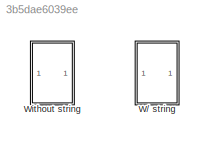
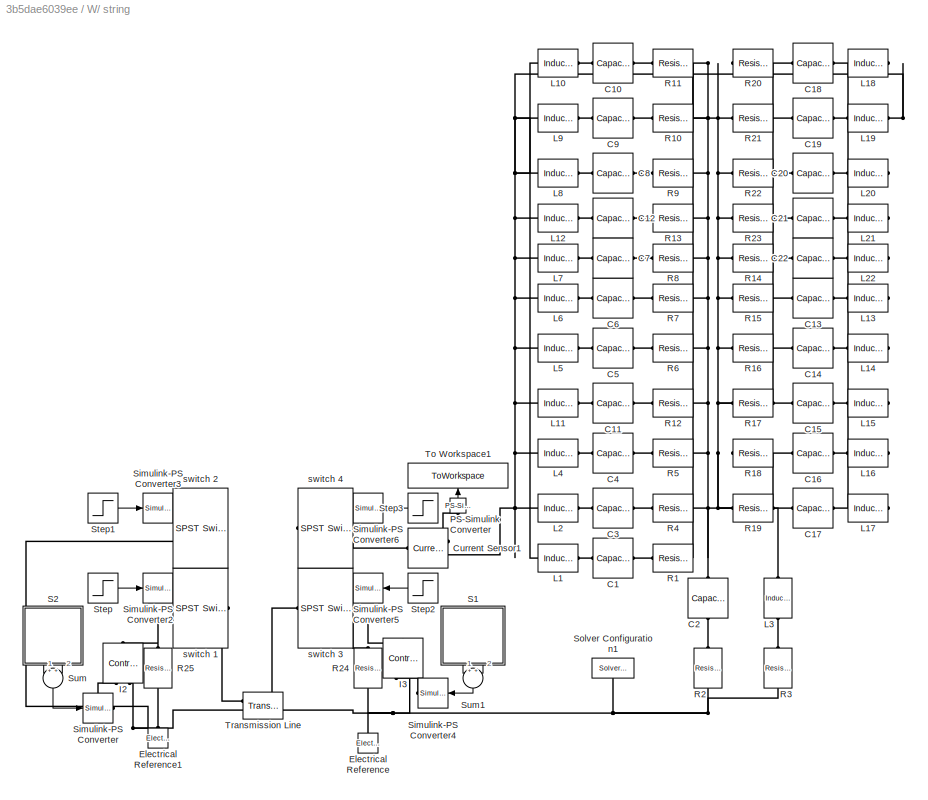
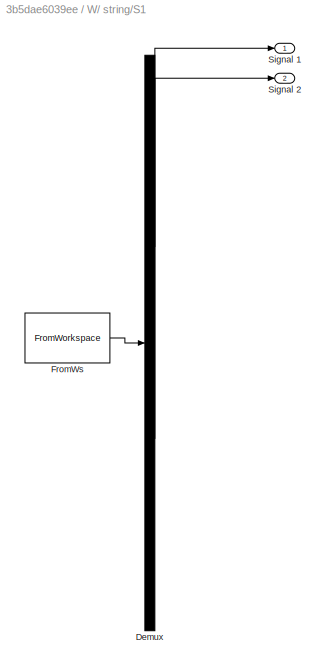
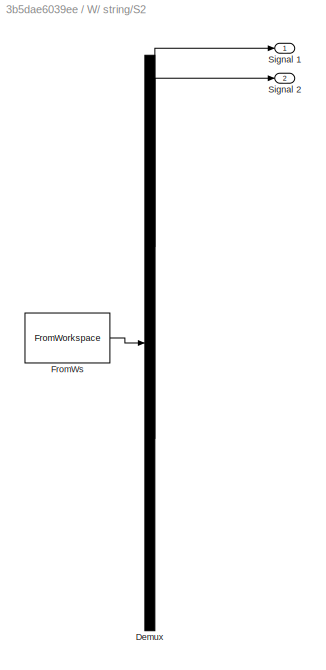
MODEL slx_3b5dae6039ee
KIND model
CONFIG AbsTol = 1e-3
CONFIG EnableMultiTasking = on
CONFIG FixedStep = 1/44100
CONFIG MaxStep = 1e-3
CONFIG MinStep = auto
CONFIG RelTol = 1e-3
CONFIG SampleTimeConstraint = Unconstrained
CONFIG SolverName = FixedStepAuto
CONFIG StartTime = 0.0
CONFIG StopTime = 3
BLOCK [SubSystem] W// string
  Ports = []
  RequestExecContextInheritance = off
BLOCK [Reference] W// string/C1  REF=fl_lib/Electrical/Electrical Elements/Capacitor
  Ports = [0, 0, 0, 0, 0, 1, 1]
  SourceBlock = fl_lib/Electrical/Electrical Elements/Capacitor
  SourceProductBaseCode = SS
  SourceType = Capacitor
BLOCK [Reference] W// string/C10  REF=fl_lib/Electrical/Electrical Elements/Capacitor
  Ports = [0, 0, 0, 0, 0, 1, 1]
  SourceBlock = fl_lib/Electrical/Electrical Elements/Capacitor
  SourceProductBaseCode = SS
  SourceType = Capacitor
BLOCK [Reference] W// string/C11  REF=fl_lib/Electrical/Electrical Elements/Capacitor
  Ports = [0, 0, 0, 0, 0, 1, 1]
  SourceBlock = fl_lib/Electrical/Electrical Elements/Capacitor
  SourceProductBaseCode = SS
  SourceType = Capacitor
BLOCK [Reference] W// string/C12  REF=fl_lib/Electrical/Electrical Elements/Capacitor
  Ports = [0, 0, 0, 0, 0, 1, 1]
  SourceBlock = fl_lib/Electrical/Electrical Elements/Capacitor
  SourceProductBaseCode = SS
  SourceType = Capacitor
BLOCK [Reference] W// string/C13  REF=fl_lib/Electrical/Electrical Elements/Capacitor
  NameLocation = top
  Ports = [0, 0, 0, 0, 0, 1, 1]
  SourceBlock = fl_lib/Electrical/Electrical Elements/Capacitor
  SourceProductBaseCode = SS
  SourceType = Capacitor
BLOCK [Reference] W// string/C14  REF=fl_lib/Electrical/Electrical Elements/Capacitor
  NameLocation = top
  Ports = [0, 0, 0, 0, 0, 1, 1]
  SourceBlock = fl_lib/Electrical/Electrical Elements/Capacitor
  SourceProductBaseCode = SS
  SourceType = Capacitor
BLOCK [Reference] W// string/C15  REF=fl_lib/Electrical/Electrical Elements/Capacitor
  NameLocation = top
  Ports = [0, 0, 0, 0, 0, 1, 1]
  SourceBlock = fl_lib/Electrical/Electrical Elements/Capacitor
  SourceProductBaseCode = SS
  SourceType = Capacitor
BLOCK [Reference] W// string/C16  REF=fl_lib/Electrical/Electrical Elements/Capacitor
  NameLocation = top
  Ports = [0, 0, 0, 0, 0, 1, 1]
  SourceBlock = fl_lib/Electrical/Electrical Elements/Capacitor
  SourceProductBaseCode = SS
  SourceType = Capacitor
BLOCK [Reference] W// string/C17  REF=fl_lib/Electrical/Electrical Elements/Capacitor
  NameLocation = top
  Ports = [0, 0, 0, 0, 0, 1, 1]
  SourceBlock = fl_lib/Electrical/Electrical Elements/Capacitor
  SourceProductBaseCode = SS
  SourceType = Capacitor
BLOCK [Reference] W// string/C18  REF=fl_lib/Electrical/Electrical Elements/Capacitor
  NameLocation = top
  Ports = [0, 0, 0, 0, 0, 1, 1]
  SourceBlock = fl_lib/Electrical/Electrical Elements/Capacitor
  SourceProductBaseCode = SS
  SourceType = Capacitor
BLOCK [Reference] W// string/C19  REF=fl_lib/Electrical/Electrical Elements/Capacitor
  NameLocation = top
  Ports = [0, 0, 0, 0, 0, 1, 1]
  SourceBlock = fl_lib/Electrical/Electrical Elements/Capacitor
  SourceProductBaseCode = SS
  SourceType = Capacitor
BLOCK [Reference] W// string/C2  REF=fl_lib/Electrical/Electrical Elements/Capacitor
  NameLocation = left
  Ports = [0, 0, 0, 0, 0, 1, 1]
  SourceBlock = fl_lib/Electrical/Electrical Elements/Capacitor
  SourceProductBaseCode = SS
  SourceType = Capacitor
BLOCK [Reference] W// string/C20  REF=fl_lib/Electrical/Electrical Elements/Capacitor
  NameLocation = top
  Ports = [0, 0, 0, 0, 0, 1, 1]
  SourceBlock = fl_lib/Electrical/Electrical Elements/Capacitor
  SourceProductBaseCode = SS
  SourceType = Capacitor
BLOCK [Reference] W// string/C21  REF=fl_lib/Electrical/Electrical Elements/Capacitor
  NameLocation = top
  Ports = [0, 0, 0, 0, 0, 1, 1]
  SourceBlock = fl_lib/Electrical/Electrical Elements/Capacitor
  SourceProductBaseCode = SS
  SourceType = Capacitor
BLOCK [Reference] W// string/C22  REF=fl_lib/Electrical/Electrical Elements/Capacitor
  NameLocation = top
  Ports = [0, 0, 0, 0, 0, 1, 1]
  SourceBlock = fl_lib/Electrical/Electrical Elements/Capacitor
  SourceProductBaseCode = SS
  SourceType = Capacitor
BLOCK [Reference] W// string/C3  REF=fl_lib/Electrical/Electrical Elements/Capacitor
  Ports = [0, 0, 0, 0, 0, 1, 1]
  SourceBlock = fl_lib/Electrical/Electrical Elements/Capacitor
  SourceProductBaseCode = SS
  SourceType = Capacitor
BLOCK [Reference] W// string/C4  REF=fl_lib/Electrical/Electrical Elements/Capacitor
  Ports = [0, 0, 0, 0, 0, 1, 1]
  SourceBlock = fl_lib/Electrical/Electrical Elements/Capacitor
  SourceProductBaseCode = SS
  SourceType = Capacitor
BLOCK [Reference] W// string/C5  REF=fl_lib/Electrical/Electrical Elements/Capacitor
  Ports = [0, 0, 0, 0, 0, 1, 1]
  SourceBlock = fl_lib/Electrical/Electrical Elements/Capacitor
  SourceProductBaseCode = SS
  SourceType = Capacitor
BLOCK [Reference] W// string/C6  REF=fl_lib/Electrical/Electrical Elements/Capacitor
  Ports = [0, 0, 0, 0, 0, 1, 1]
  SourceBlock = fl_lib/Electrical/Electrical Elements/Capacitor
  SourceProductBaseCode = SS
  SourceType = Capacitor
BLOCK [Reference] W// string/C7  REF=fl_lib/Electrical/Electrical Elements/Capacitor
  Ports = [0, 0, 0, 0, 0, 1, 1]
  SourceBlock = fl_lib/Electrical/Electrical Elements/Capacitor
  SourceProductBaseCode = SS
  SourceType = Capacitor
BLOCK [Reference] W// string/C8  REF=fl_lib/Electrical/Electrical Elements/Capacitor
  Ports = [0, 0, 0, 0, 0, 1, 1]
  SourceBlock = fl_lib/Electrical/Electrical Elements/Capacitor
  SourceProductBaseCode = SS
  SourceType = Capacitor
BLOCK [Reference] W// string/C9  REF=fl_lib/Electrical/Electrical Elements/Capacitor
  Ports = [0, 0, 0, 0, 0, 1, 1]
  SourceBlock = fl_lib/Electrical/Electrical Elements/Capacitor
  SourceProductBaseCode = SS
  SourceType = Capacitor
BLOCK [Reference] W// string/Current Sensor1  REF=fl_lib/Electrical/Electrical Sensors/Current Sensor
  Ports = [0, 0, 0, 0, 0, 1, 2]
  SourceBlock = fl_lib/Electrical/Electrical Sensors/Current Sensor
  SourceProductBaseCode = SS
  SourceType = Current Sensor
BLOCK [Reference] W// string/Electrical Reference  REF=fl_lib/Electrical/Electrical Elements/Electrical Reference
  NameLocation = right
  Ports = [0, 0, 0, 0, 0, 1]
  SourceBlock = fl_lib/Electrical/Electrical Elements/Electrical Reference
  SourceProductBaseCode = SS
  SourceType = Electrical Reference
BLOCK [Reference] W// string/Electrical Reference1  REF=fl_lib/Electrical/Electrical Elements/Electrical Reference
  NameLocation = right
  Ports = [0, 0, 0, 0, 0, 1]
  SourceBlock = fl_lib/Electrical/Electrical Elements/Electrical Reference
  SourceProductBaseCode = SS
  SourceType = Electrical Reference
BLOCK [Reference] W// string/I2  REF=fl_lib/Electrical/Electrical Sources/Controlled Current
Source
  NameLocation = right
  Ports = [0, 0, 0, 0, 0, 1, 2]
  SourceBlock = fl_lib/Electrical/Electrical Sources/Controlled Current\nSource
  SourceProductBaseCode = SS
  SourceType = Controlled Current\nSource
BLOCK [Reference] W// string/I3  REF=fl_lib/Electrical/Electrical Sources/Controlled Current
Source
  NameLocation = right
  Ports = [0, 0, 0, 0, 0, 1, 2]
  SourceBlock = fl_lib/Electrical/Electrical Sources/Controlled Current\nSource
  SourceProductBaseCode = SS
  SourceType = Controlled Current\nSource
BLOCK [Reference] W// string/L1  REF=fl_lib/Electrical/Electrical Elements/Inductor
  Ports = [0, 0, 0, 0, 0, 1, 1]
  SourceBlock = fl_lib/Electrical/Electrical Elements/Inductor
  SourceProductBaseCode = SS
  SourceType = Inductor
BLOCK [Reference] W// string/L10  REF=fl_lib/Electrical/Electrical Elements/Inductor
  Ports = [0, 0, 0, 0, 0, 1, 1]
  SourceBlock = fl_lib/Electrical/Electrical Elements/Inductor
  SourceProductBaseCode = SS
  SourceType = Inductor
BLOCK [Reference] W// string/L11  REF=fl_lib/Electrical/Electrical Elements/Inductor
  Ports = [0, 0, 0, 0, 0, 1, 1]
  SourceBlock = fl_lib/Electrical/Electrical Elements/Inductor
  SourceProductBaseCode = SS
  SourceType = Inductor
BLOCK [Reference] W// string/L12  REF=fl_lib/Electrical/Electrical Elements/Inductor
  Ports = [0, 0, 0, 0, 0, 1, 1]
  SourceBlock = fl_lib/Electrical/Electrical Elements/Inductor
  SourceProductBaseCode = SS
  SourceType = Inductor
BLOCK [Reference] W// string/L13  REF=fl_lib/Electrical/Electrical Elements/Inductor
  NameLocation = top
  Ports = [0, 0, 0, 0, 0, 1, 1]
  SourceBlock = fl_lib/Electrical/Electrical Elements/Inductor
  SourceProductBaseCode = SS
  SourceType = Inductor
BLOCK [Reference] W// string/L14  REF=fl_lib/Electrical/Electrical Elements/Inductor
  NameLocation = top
  Ports = [0, 0, 0, 0, 0, 1, 1]
  SourceBlock = fl_lib/Electrical/Electrical Elements/Inductor
  SourceProductBaseCode = SS
  SourceType = Inductor
BLOCK [Reference] W// string/L15  REF=fl_lib/Electrical/Electrical Elements/Inductor
  NameLocation = top
  Ports = [0, 0, 0, 0, 0, 1, 1]
  SourceBlock = fl_lib/Electrical/Electrical Elements/Inductor
  SourceProductBaseCode = SS
  SourceType = Inductor
BLOCK [Reference] W// string/L16  REF=fl_lib/Electrical/Electrical Elements/Inductor
  NameLocation = top
  Ports = [0, 0, 0, 0, 0, 1, 1]
  SourceBlock = fl_lib/Electrical/Electrical Elements/Inductor
  SourceProductBaseCode = SS
  SourceType = Inductor
BLOCK [Reference] W// string/L17  REF=fl_lib/Electrical/Electrical Elements/Inductor
  NameLocation = top
  Ports = [0, 0, 0, 0, 0, 1, 1]
  SourceBlock = fl_lib/Electrical/Electrical Elements/Inductor
  SourceProductBaseCode = SS
  SourceType = Inductor
BLOCK [Reference] W// string/L18  REF=fl_lib/Electrical/Electrical Elements/Inductor
  NameLocation = top
  Ports = [0, 0, 0, 0, 0, 1, 1]
  SourceBlock = fl_lib/Electrical/Electrical Elements/Inductor
  SourceProductBaseCode = SS
  SourceType = Inductor
BLOCK [Reference] W// string/L19  REF=fl_lib/Electrical/Electrical Elements/Inductor
  NameLocation = top
  Ports = [0, 0, 0, 0, 0, 1, 1]
  SourceBlock = fl_lib/Electrical/Electrical Elements/Inductor
  SourceProductBaseCode = SS
  SourceType = Inductor
BLOCK [Reference] W// string/L2  REF=fl_lib/Electrical/Electrical Elements/Inductor
  Ports = [0, 0, 0, 0, 0, 1, 1]
  SourceBlock = fl_lib/Electrical/Electrical Elements/Inductor
  SourceProductBaseCode = SS
  SourceType = Inductor
BLOCK [Reference] W// string/L20  REF=fl_lib/Electrical/Electrical Elements/Inductor
  NameLocation = top
  Ports = [0, 0, 0, 0, 0, 1, 1]
  SourceBlock = fl_lib/Electrical/Electrical Elements/Inductor
  SourceProductBaseCode = SS
  SourceType = Inductor
BLOCK [Reference] W// string/L21  REF=fl_lib/Electrical/Electrical Elements/Inductor
  NameLocation = top
  Ports = [0, 0, 0, 0, 0, 1, 1]
  SourceBlock = fl_lib/Electrical/Electrical Elements/Inductor
  SourceProductBaseCode = SS
  SourceType = Inductor
BLOCK [Reference] W// string/L22  REF=fl_lib/Electrical/Electrical Elements/Inductor
  NameLocation = top
  Ports = [0, 0, 0, 0, 0, 1, 1]
  SourceBlock = fl_lib/Electrical/Electrical Elements/Inductor
  SourceProductBaseCode = SS
  SourceType = Inductor
BLOCK [Reference] W// string/L3  REF=fl_lib/Electrical/Electrical Elements/Inductor
  NameLocation = left
  Ports = [0, 0, 0, 0, 0, 1, 1]
  SourceBlock = fl_lib/Electrical/Electrical Elements/Inductor
  SourceProductBaseCode = SS
  SourceType = Inductor
BLOCK [Reference] W// string/L4  REF=fl_lib/Electrical/Electrical Elements/Inductor
  Ports = [0, 0, 0, 0, 0, 1, 1]
  SourceBlock = fl_lib/Electrical/Electrical Elements/Inductor
  SourceProductBaseCode = SS
  SourceType = Inductor
BLOCK [Reference] W// string/L5  REF=fl_lib/Electrical/Electrical Elements/Inductor
  Ports = [0, 0, 0, 0, 0, 1, 1]
  SourceBlock = fl_lib/Electrical/Electrical Elements/Inductor
  SourceProductBaseCode = SS
  SourceType = Inductor
BLOCK [Reference] W// string/L6  REF=fl_lib/Electrical/Electrical Elements/Inductor
  Ports = [0, 0, 0, 0, 0, 1, 1]
  SourceBlock = fl_lib/Electrical/Electrical Elements/Inductor
  SourceProductBaseCode = SS
  SourceType = Inductor
BLOCK [Reference] W// string/L7  REF=fl_lib/Electrical/Electrical Elements/Inductor
  Ports = [0, 0, 0, 0, 0, 1, 1]
  SourceBlock = fl_lib/Electrical/Electrical Elements/Inductor
  SourceProductBaseCode = SS
  SourceType = Inductor
BLOCK [Reference] W// string/L8  REF=fl_lib/Electrical/Electrical Elements/Inductor
  Ports = [0, 0, 0, 0, 0, 1, 1]
  SourceBlock = fl_lib/Electrical/Electrical Elements/Inductor
  SourceProductBaseCode = SS
  SourceType = Inductor
BLOCK [Reference] W// string/L9  REF=fl_lib/Electrical/Electrical Elements/Inductor
  Ports = [0, 0, 0, 0, 0, 1, 1]
  SourceBlock = fl_lib/Electrical/Electrical Elements/Inductor
  SourceProductBaseCode = SS
  SourceType = Inductor
BLOCK [Reference] W// string/PS-Simulink Converter  REF=nesl_utility/PS-Simulink
Converter
  NameLocation = right
  Ports = [0, 1, 0, 0, 0, 1]
  SourceBlock = nesl_utility/PS-Simulink\nConverter
  SourceProductBaseCode = PW,SS
  SourceType = PS-Simulink\nConverter
BLOCK [Reference] W// string/R1  REF=fl_lib/Electrical/Electrical Elements/Resistor
  Ports = [0, 0, 0, 0, 0, 1, 1]
  SourceBlock = fl_lib/Electrical/Electrical Elements/Resistor
  SourceProductBaseCode = SS
  SourceType = Resistor
BLOCK [Reference] W// string/R10  REF=fl_lib/Electrical/Electrical Elements/Resistor
  Ports = [0, 0, 0, 0, 0, 1, 1]
  SourceBlock = fl_lib/Electrical/Electrical Elements/Resistor
  SourceProductBaseCode = SS
  SourceType = Resistor
BLOCK [Reference] W// string/R11  REF=fl_lib/Electrical/Electrical Elements/Resistor
  Ports = [0, 0, 0, 0, 0, 1, 1]
  SourceBlock = fl_lib/Electrical/Electrical Elements/Resistor
  SourceProductBaseCode = SS
  SourceType = Resistor
BLOCK [Reference] W// string/R12  REF=fl_lib/Electrical/Electrical Elements/Resistor
  Ports = [0, 0, 0, 0, 0, 1, 1]
  SourceBlock = fl_lib/Electrical/Electrical Elements/Resistor
  SourceProductBaseCode = SS
  SourceType = Resistor
BLOCK [Reference] W// string/R13  REF=fl_lib/Electrical/Electrical Elements/Resistor
  Ports = [0, 0, 0, 0, 0, 1, 1]
  SourceBlock = fl_lib/Electrical/Electrical Elements/Resistor
  SourceProductBaseCode = SS
  SourceType = Resistor
BLOCK [Reference] W// string/R14  REF=fl_lib/Electrical/Electrical Elements/Resistor
  NameLocation = top
  Ports = [0, 0, 0, 0, 0, 1, 1]
  SourceBlock = fl_lib/Electrical/Electrical Elements/Resistor
  SourceProductBaseCode = SS
  SourceType = Resistor
BLOCK [Reference] W// string/R15  REF=fl_lib/Electrical/Electrical Elements/Resistor
  NameLocation = top
  Ports = [0, 0, 0, 0, 0, 1, 1]
  SourceBlock = fl_lib/Electrical/Electrical Elements/Resistor
  SourceProductBaseCode = SS
  SourceType = Resistor
BLOCK [Reference] W// string/R16  REF=fl_lib/Electrical/Electrical Elements/Resistor
  NameLocation = top
  Ports = [0, 0, 0, 0, 0, 1, 1]
  SourceBlock = fl_lib/Electrical/Electrical Elements/Resistor
  SourceProductBaseCode = SS
  SourceType = Resistor
BLOCK [Reference] W// string/R17  REF=fl_lib/Electrical/Electrical Elements/Resistor
  NameLocation = top
  Ports = [0, 0, 0, 0, 0, 1, 1]
  SourceBlock = fl_lib/Electrical/Electrical Elements/Resistor
  SourceProductBaseCode = SS
  SourceType = Resistor
BLOCK [Reference] W// string/R18  REF=fl_lib/Electrical/Electrical Elements/Resistor
  NameLocation = top
  Ports = [0, 0, 0, 0, 0, 1, 1]
  SourceBlock = fl_lib/Electrical/Electrical Elements/Resistor
  SourceProductBaseCode = SS
  SourceType = Resistor
BLOCK [Reference] W// string/R19  REF=fl_lib/Electrical/Electrical Elements/Resistor
  NameLocation = top
  Ports = [0, 0, 0, 0, 0, 1, 1]
  SourceBlock = fl_lib/Electrical/Electrical Elements/Resistor
  SourceProductBaseCode = SS
  SourceType = Resistor
BLOCK [Reference] W// string/R2  REF=fl_lib/Electrical/Electrical Elements/Resistor
  NameLocation = left
  Ports = [0, 0, 0, 0, 0, 1, 1]
  SourceBlock = fl_lib/Electrical/Electrical Elements/Resistor
  SourceProductBaseCode = SS
  SourceType = Resistor
BLOCK [Reference] W// string/R20  REF=fl_lib/Electrical/Electrical Elements/Resistor
  NameLocation = top
  Ports = [0, 0, 0, 0, 0, 1, 1]
  SourceBlock = fl_lib/Electrical/Electrical Elements/Resistor
  SourceProductBaseCode = SS
  SourceType = Resistor
BLOCK [Reference] W// string/R21  REF=fl_lib/Electrical/Electrical Elements/Resistor
  NameLocation = top
  Ports = [0, 0, 0, 0, 0, 1, 1]
  SourceBlock = fl_lib/Electrical/Electrical Elements/Resistor
  SourceProductBaseCode = SS
  SourceType = Resistor
BLOCK [Reference] W// string/R22  REF=fl_lib/Electrical/Electrical Elements/Resistor
  NameLocation = top
  Ports = [0, 0, 0, 0, 0, 1, 1]
  SourceBlock = fl_lib/Electrical/Electrical Elements/Resistor
  SourceProductBaseCode = SS
  SourceType = Resistor
BLOCK [Reference] W// string/R23  REF=fl_lib/Electrical/Electrical Elements/Resistor
  NameLocation = top
  Ports = [0, 0, 0, 0, 0, 1, 1]
  SourceBlock = fl_lib/Electrical/Electrical Elements/Resistor
  SourceProductBaseCode = SS
  SourceType = Resistor
BLOCK [Reference] W// string/R24  REF=fl_lib/Electrical/Electrical Elements/Resistor
  NameLocation = left
  Ports = [0, 0, 0, 0, 0, 1, 1]
  SourceBlock = fl_lib/Electrical/Electrical Elements/Resistor
  SourceProductBaseCode = SS
  SourceType = Resistor
BLOCK [Reference] W// string/R25  REF=fl_lib/Electrical/Electrical Elements/Resistor
  NameLocation = left
  Ports = [0, 0, 0, 0, 0, 1, 1]
  SourceBlock = fl_lib/Electrical/Electrical Elements/Resistor
  SourceProductBaseCode = SS
  SourceType = Resistor
BLOCK [Reference] W// string/R3  REF=fl_lib/Electrical/Electrical Elements/Resistor
  NameLocation = left
  Ports = [0, 0, 0, 0, 0, 1, 1]
  SourceBlock = fl_lib/Electrical/Electrical Elements/Resistor
  SourceProductBaseCode = SS
  SourceType = Resistor
BLOCK [Reference] W// string/R4  REF=fl_lib/Electrical/Electrical Elements/Resistor
  Ports = [0, 0, 0, 0, 0, 1, 1]
  SourceBlock = fl_lib/Electrical/Electrical Elements/Resistor
  SourceProductBaseCode = SS
  SourceType = Resistor
BLOCK [Reference] W// string/R5  REF=fl_lib/Electrical/Electrical Elements/Resistor
  Ports = [0, 0, 0, 0, 0, 1, 1]
  SourceBlock = fl_lib/Electrical/Electrical Elements/Resistor
  SourceProductBaseCode = SS
  SourceType = Resistor
BLOCK [Reference] W// string/R6  REF=fl_lib/Electrical/Electrical Elements/Resistor
  Ports = [0, 0, 0, 0, 0, 1, 1]
  SourceBlock = fl_lib/Electrical/Electrical Elements/Resistor
  SourceProductBaseCode = SS
  SourceType = Resistor
BLOCK [Reference] W// string/R7  REF=fl_lib/Electrical/Electrical Elements/Resistor
  Ports = [0, 0, 0, 0, 0, 1, 1]
  SourceBlock = fl_lib/Electrical/Electrical Elements/Resistor
  SourceProductBaseCode = SS
  SourceType = Resistor
BLOCK [Reference] W// string/R8  REF=fl_lib/Electrical/Electrical Elements/Resistor
  Ports = [0, 0, 0, 0, 0, 1, 1]
  SourceBlock = fl_lib/Electrical/Electrical Elements/Resistor
  SourceProductBaseCode = SS
  SourceType = Resistor
BLOCK [Reference] W// string/R9  REF=fl_lib/Electrical/Electrical Elements/Resistor
  Ports = [0, 0, 0, 0, 0, 1, 1]
  SourceBlock = fl_lib/Electrical/Electrical Elements/Resistor
  SourceProductBaseCode = SS
  SourceType = Resistor
BLOCK [SubSystem] W// string/S1
  ClipboardFcn = sigbuilder_block('clipboard');
  CloseFcn = sigbuilder_block('close');
  ContinueFcn = sigbuilder_block('continue');
  CopyFcn = sigbuilder_block('copy');
  DeleteFcn = sigbuilder_block('delete');
  LoadFcn = sigbuilder_block('load');
  MaskHideContents = on
  ModelCloseFcn = sigbuilder_block('modelClose');
  NameChangeFcn = sigbuilder_block('namechange');
  NameLocation = right
  OpenFcn = sigbuilder_block('open',[70 1050 1370 753 ]);
  PauseFcn = sigbuilder_block('pause');
  Ports = [0, 2]
  PreSaveFcn = sigbuilder_block('preSave');
  RequestExecContextInheritance = off
  StartFcn = sigbuilder_block('start');
  StopFcn = sigbuilder_block('stop');
  Tag = STV Subsys
BLOCK [Demux] W// string/S1/Demux
  DisplayOption = none
  Outputs = 2
  Ports = [1, 2]
  Tag = STV Demux
BLOCK [FromWorkspace] W// string/S1/FromWs
  OutputAfterFinalValue = Setting to zero
  Tag = STV FromWs
  VariableName = tuvar
BLOCK [Outport] W// string/S1/Signal 1
  Tag = STV Outport
  VectorParamsAs1DForOutWhenUnconnected = off
BLOCK [Outport] W// string/S1/Signal 2
  Port = 2
  Tag = STV Outport
  VectorParamsAs1DForOutWhenUnconnected = off
BLOCK [SubSystem] W// string/S2
  ClipboardFcn = sigbuilder_block('clipboard');
  CloseFcn = sigbuilder_block('close');
  ContinueFcn = sigbuilder_block('continue');
  CopyFcn = sigbuilder_block('copy');
  DeleteFcn = sigbuilder_block('delete');
  LoadFcn = sigbuilder_block('load');
  MaskHideContents = on
  ModelCloseFcn = sigbuilder_block('modelClose');
  NameChangeFcn = sigbuilder_block('namechange');
  NameLocation = left
  OpenFcn = sigbuilder_block('open',[70 0 1370 796 ]);
  PauseFcn = sigbuilder_block('pause');
  Ports = [0, 2]
  PreSaveFcn = sigbuilder_block('preSave');
  RequestExecContextInheritance = off
  StartFcn = sigbuilder_block('start');
  StopFcn = sigbuilder_block('stop');
  Tag = STV Subsys
BLOCK [Demux] W// string/S2/Demux
  DisplayOption = none
  Outputs = 2
  Ports = [1, 2]
  Tag = STV Demux
BLOCK [FromWorkspace] W// string/S2/FromWs
  OutputAfterFinalValue = Setting to zero
  Tag = STV FromWs
  VariableName = tuvar
BLOCK [Outport] W// string/S2/Signal 1
  Tag = STV Outport
  VectorParamsAs1DForOutWhenUnconnected = off
BLOCK [Outport] W// string/S2/Signal 2
  Port = 2
  Tag = STV Outport
  VectorParamsAs1DForOutWhenUnconnected = off
BLOCK [Reference] W// string/Simulink-PS Converter  REF=nesl_utility/Simulink-PS
Converter
  Ports = [1, 0, 0, 0, 0, 0, 1]
  SourceBlock = nesl_utility/Simulink-PS\nConverter
  SourceProductBaseCode = PW,SS
  SourceType = Simulink-PS\nConverter
BLOCK [Reference] W// string/Simulink-PS Converter2  REF=nesl_utility/Simulink-PS
Converter
  Ports = [1, 0, 0, 0, 0, 0, 1]
  SourceBlock = nesl_utility/Simulink-PS\nConverter
  SourceProductBaseCode = PW,SS
  SourceType = Simulink-PS\nConverter
BLOCK [Reference] W// string/Simulink-PS Converter3  REF=nesl_utility/Simulink-PS
Converter
  Ports = [1, 0, 0, 0, 0, 0, 1]
  SourceBlock = nesl_utility/Simulink-PS\nConverter
  SourceProductBaseCode = PW,SS
  SourceType = Simulink-PS\nConverter
BLOCK [Reference] W// string/Simulink-PS Converter4  REF=nesl_utility/Simulink-PS
Converter
  Ports = [1, 0, 0, 0, 0, 0, 1]
  SourceBlock = nesl_utility/Simulink-PS\nConverter
  SourceProductBaseCode = PW,SS
  SourceType = Simulink-PS\nConverter
BLOCK [Reference] W// string/Simulink-PS Converter5  REF=nesl_utility/Simulink-PS
Converter
  Ports = [1, 0, 0, 0, 0, 0, 1]
  SourceBlock = nesl_utility/Simulink-PS\nConverter
  SourceProductBaseCode = PW,SS
  SourceType = Simulink-PS\nConverter
BLOCK [Reference] W// string/Simulink-PS Converter6  REF=nesl_utility/Simulink-PS
Converter
  Ports = [1, 0, 0, 0, 0, 0, 1]
  SourceBlock = nesl_utility/Simulink-PS\nConverter
  SourceProductBaseCode = PW,SS
  SourceType = Simulink-PS\nConverter
BLOCK [Reference] W// string/Solver Configuration1  REF=nesl_utility/Solver
Configuration
  NameLocation = left
  Ports = [0, 0, 0, 0, 0, 0, 1]
  SourceBlock = nesl_utility/Solver\nConfiguration
  SourceProductBaseCode = PW,SS
  SourceType = Solver\nConfiguration
BLOCK [Step] W// string/Step
  After = 0
  Before = 1
  SampleTime = 0
  Time = 1.515e-3
BLOCK [Step] W// string/Step1
  SampleTime = 0
  Time = 1.515e-3
BLOCK [Step] W// string/Step2
  After = 0
  Before = 1
  SampleTime = 0
  Time = 1.515e-3
BLOCK [Step] W// string/Step3
  SampleTime = 0
  Time = 1.515e-3
BLOCK [Sum] W// string/Sum
  NameLocation = left
  Ports = [2, 1]
BLOCK [Sum] W// string/Sum1
  NameLocation = right
  Ports = [2, 1]
BLOCK [ToWorkspace] W// string/To Workspace1
  FixptAsFi = on
  MaxDataPoints = inf
  NameLocation = right
  Ports = [1]
  SampleTime = -1
  SaveFormat = Timeseries
  VariableName = I1
BLOCK [Reference] W// string/Transmission Line  REF=ee_lib/Passive/Lines/Transmission Line
  Ports = [0, 0, 0, 0, 0, 2, 2]
  SourceBlock = ee_lib/Passive/Lines/Transmission Line
  SourceProductBaseCode = PS
  SourceType = Transmission Line
BLOCK [Reference] W// string/switch 1  REF=ee_lib/Switches & Breakers/SPST Switch
  Ports = [0, 0, 0, 0, 0, 2, 1]
  SourceBlock = ee_lib/Switches & Breakers/SPST Switch
  SourceProductBaseCode = PS
  SourceType = SPST Switch
BLOCK [Reference] W// string/switch 2  REF=ee_lib/Switches & Breakers/SPST Switch
  Ports = [0, 0, 0, 0, 0, 2, 1]
  SourceBlock = ee_lib/Switches & Breakers/SPST Switch
  SourceProductBaseCode = PS
  SourceType = SPST Switch
BLOCK [Reference] W// string/switch 3  REF=ee_lib/Switches & Breakers/SPST Switch
  Ports = [0, 0, 0, 0, 0, 2, 1]
  SourceBlock = ee_lib/Switches & Breakers/SPST Switch
  SourceProductBaseCode = PS
  SourceType = SPST Switch
BLOCK [Reference] W// string/switch 4  REF=ee_lib/Switches & Breakers/SPST Switch
  Ports = [0, 0, 0, 0, 0, 2, 1]
  SourceBlock = ee_lib/Switches & Breakers/SPST Switch
  SourceProductBaseCode = PS
  SourceType = SPST Switch
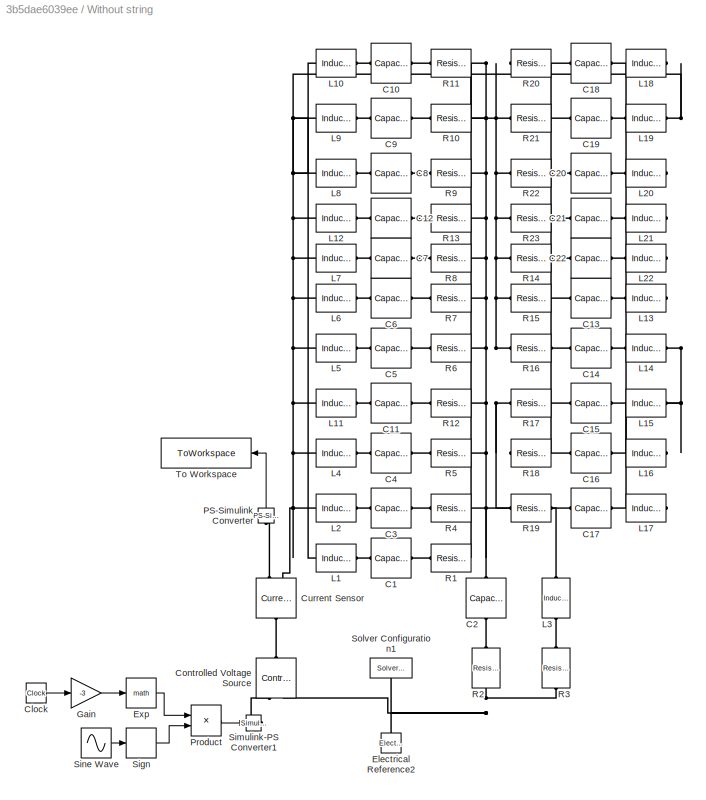
BLOCK [SubSystem] Without string
  Ports = []
  RequestExecContextInheritance = off
BLOCK [Reference] Without string/C1  REF=fl_lib/Electrical/Electrical Elements/Capacitor
  Ports = [0, 0, 0, 0, 0, 1, 1]
  SourceBlock = fl_lib/Electrical/Electrical Elements/Capacitor
  SourceProductBaseCode = SS
  SourceType = Capacitor
BLOCK [Reference] Without string/C10  REF=fl_lib/Electrical/Electrical Elements/Capacitor
  Ports = [0, 0, 0, 0, 0, 1, 1]
  SourceBlock = fl_lib/Electrical/Electrical Elements/Capacitor
  SourceProductBaseCode = SS
  SourceType = Capacitor
BLOCK [Reference] Without string/C11  REF=fl_lib/Electrical/Electrical Elements/Capacitor
  Ports = [0, 0, 0, 0, 0, 1, 1]
  SourceBlock = fl_lib/Electrical/Electrical Elements/Capacitor
  SourceProductBaseCode = SS
  SourceType = Capacitor
BLOCK [Reference] Without string/C12  REF=fl_lib/Electrical/Electrical Elements/Capacitor
  Ports = [0, 0, 0, 0, 0, 1, 1]
  SourceBlock = fl_lib/Electrical/Electrical Elements/Capacitor
  SourceProductBaseCode = SS
  SourceType = Capacitor
BLOCK [Reference] Without string/C13  REF=fl_lib/Electrical/Electrical Elements/Capacitor
  NameLocation = top
  Ports = [0, 0, 0, 0, 0, 1, 1]
  SourceBlock = fl_lib/Electrical/Electrical Elements/Capacitor
  SourceProductBaseCode = SS
  SourceType = Capacitor
BLOCK [Reference] Without string/C14  REF=fl_lib/Electrical/Electrical Elements/Capacitor
  NameLocation = top
  Ports = [0, 0, 0, 0, 0, 1, 1]
  SourceBlock = fl_lib/Electrical/Electrical Elements/Capacitor
  SourceProductBaseCode = SS
  SourceType = Capacitor
BLOCK [Reference] Without string/C15  REF=fl_lib/Electrical/Electrical Elements/Capacitor
  NameLocation = top
  Ports = [0, 0, 0, 0, 0, 1, 1]
  SourceBlock = fl_lib/Electrical/Electrical Elements/Capacitor
  SourceProductBaseCode = SS
  SourceType = Capacitor
BLOCK [Reference] Without string/C16  REF=fl_lib/Electrical/Electrical Elements/Capacitor
  NameLocation = top
  Ports = [0, 0, 0, 0, 0, 1, 1]
  SourceBlock = fl_lib/Electrical/Electrical Elements/Capacitor
  SourceProductBaseCode = SS
  SourceType = Capacitor
BLOCK [Reference] Without string/C17  REF=fl_lib/Electrical/Electrical Elements/Capacitor
  NameLocation = top
  Ports = [0, 0, 0, 0, 0, 1, 1]
  SourceBlock = fl_lib/Electrical/Electrical Elements/Capacitor
  SourceProductBaseCode = SS
  SourceType = Capacitor
BLOCK [Reference] Without string/C18  REF=fl_lib/Electrical/Electrical Elements/Capacitor
  NameLocation = top
  Ports = [0, 0, 0, 0, 0, 1, 1]
  SourceBlock = fl_lib/Electrical/Electrical Elements/Capacitor
  SourceProductBaseCode = SS
  SourceType = Capacitor
BLOCK [Reference] Without string/C19  REF=fl_lib/Electrical/Electrical Elements/Capacitor
  NameLocation = top
  Ports = [0, 0, 0, 0, 0, 1, 1]
  SourceBlock = fl_lib/Electrical/Electrical Elements/Capacitor
  SourceProductBaseCode = SS
  SourceType = Capacitor
BLOCK [Reference] Without string/C2  REF=fl_lib/Electrical/Electrical Elements/Capacitor
  NameLocation = left
  Ports = [0, 0, 0, 0, 0, 1, 1]
  SourceBlock = fl_lib/Electrical/Electrical Elements/Capacitor
  SourceProductBaseCode = SS
  SourceType = Capacitor
BLOCK [Reference] Without string/C20  REF=fl_lib/Electrical/Electrical Elements/Capacitor
  NameLocation = top
  Ports = [0, 0, 0, 0, 0, 1, 1]
  SourceBlock = fl_lib/Electrical/Electrical Elements/Capacitor
  SourceProductBaseCode = SS
  SourceType = Capacitor
BLOCK [Reference] Without string/C21  REF=fl_lib/Electrical/Electrical Elements/Capacitor
  NameLocation = top
  Ports = [0, 0, 0, 0, 0, 1, 1]
  SourceBlock = fl_lib/Electrical/Electrical Elements/Capacitor
  SourceProductBaseCode = SS
  SourceType = Capacitor
BLOCK [Reference] Without string/C22  REF=fl_lib/Electrical/Electrical Elements/Capacitor
  NameLocation = top
  Ports = [0, 0, 0, 0, 0, 1, 1]
  SourceBlock = fl_lib/Electrical/Electrical Elements/Capacitor
  SourceProductBaseCode = SS
  SourceType = Capacitor
BLOCK [Reference] Without string/C3  REF=fl_lib/Electrical/Electrical Elements/Capacitor
  Ports = [0, 0, 0, 0, 0, 1, 1]
  SourceBlock = fl_lib/Electrical/Electrical Elements/Capacitor
  SourceProductBaseCode = SS
  SourceType = Capacitor
BLOCK [Reference] Without string/C4  REF=fl_lib/Electrical/Electrical Elements/Capacitor
  Ports = [0, 0, 0, 0, 0, 1, 1]
  SourceBlock = fl_lib/Electrical/Electrical Elements/Capacitor
  SourceProductBaseCode = SS
  SourceType = Capacitor
BLOCK [Reference] Without string/C5  REF=fl_lib/Electrical/Electrical Elements/Capacitor
  Ports = [0, 0, 0, 0, 0, 1, 1]
  SourceBlock = fl_lib/Electrical/Electrical Elements/Capacitor
  SourceProductBaseCode = SS
  SourceType = Capacitor
BLOCK [Reference] Without string/C6  REF=fl_lib/Electrical/Electrical Elements/Capacitor
  Ports = [0, 0, 0, 0, 0, 1, 1]
  SourceBlock = fl_lib/Electrical/Electrical Elements/Capacitor
  SourceProductBaseCode = SS
  SourceType = Capacitor
BLOCK [Reference] Without string/C7  REF=fl_lib/Electrical/Electrical Elements/Capacitor
  Ports = [0, 0, 0, 0, 0, 1, 1]
  SourceBlock = fl_lib/Electrical/Electrical Elements/Capacitor
  SourceProductBaseCode = SS
  SourceType = Capacitor
BLOCK [Reference] Without string/C8  REF=fl_lib/Electrical/Electrical Elements/Capacitor
  Ports = [0, 0, 0, 0, 0, 1, 1]
  SourceBlock = fl_lib/Electrical/Electrical Elements/Capacitor
  SourceProductBaseCode = SS
  SourceType = Capacitor
BLOCK [Reference] Without string/C9  REF=fl_lib/Electrical/Electrical Elements/Capacitor
  Ports = [0, 0, 0, 0, 0, 1, 1]
  SourceBlock = fl_lib/Electrical/Electrical Elements/Capacitor
  SourceProductBaseCode = SS
  SourceType = Capacitor
BLOCK [Clock] Without string/Clock
BLOCK [Reference] Without string/Controlled Voltage Source  REF=fl_lib/Electrical/Electrical Sources/Controlled Voltage
Source
  NameLocation = right
  Ports = [0, 0, 0, 0, 0, 1, 2]
  SourceBlock = fl_lib/Electrical/Electrical Sources/Controlled Voltage\nSource
  SourceProductBaseCode = SS
  SourceType = Controlled Voltage\nSource
BLOCK [Reference] Without string/Current Sensor  REF=fl_lib/Electrical/Electrical Sensors/Current Sensor
  NameLocation = right
  Ports = [0, 0, 0, 0, 0, 1, 2]
  SourceBlock = fl_lib/Electrical/Electrical Sensors/Current Sensor
  SourceProductBaseCode = SS
  SourceType = Current Sensor
BLOCK [Reference] Without string/Electrical Reference2  REF=fl_lib/Electrical/Electrical Elements/Electrical Reference
  NameLocation = right
  Ports = [0, 0, 0, 0, 0, 1]
  SourceBlock = fl_lib/Electrical/Electrical Elements/Electrical Reference
  SourceProductBaseCode = SS
  SourceType = Electrical Reference
BLOCK [Math] Without string/Exp
  Ports = [1, 1]
BLOCK [Gain] Without string/Gain
  Gain = -3
BLOCK [Reference] Without string/L1  REF=fl_lib/Electrical/Electrical Elements/Inductor
  Ports = [0, 0, 0, 0, 0, 1, 1]
  SourceBlock = fl_lib/Electrical/Electrical Elements/Inductor
  SourceProductBaseCode = SS
  SourceType = Inductor
BLOCK [Reference] Without string/L10  REF=fl_lib/Electrical/Electrical Elements/Inductor
  Ports = [0, 0, 0, 0, 0, 1, 1]
  SourceBlock = fl_lib/Electrical/Electrical Elements/Inductor
  SourceProductBaseCode = SS
  SourceType = Inductor
BLOCK [Reference] Without string/L11  REF=fl_lib/Electrical/Electrical Elements/Inductor
  Ports = [0, 0, 0, 0, 0, 1, 1]
  SourceBlock = fl_lib/Electrical/Electrical Elements/Inductor
  SourceProductBaseCode = SS
  SourceType = Inductor
BLOCK [Reference] Without string/L12  REF=fl_lib/Electrical/Electrical Elements/Inductor
  Ports = [0, 0, 0, 0, 0, 1, 1]
  SourceBlock = fl_lib/Electrical/Electrical Elements/Inductor
  SourceProductBaseCode = SS
  SourceType = Inductor
BLOCK [Reference] Without string/L13  REF=fl_lib/Electrical/Electrical Elements/Inductor
  NameLocation = top
  Ports = [0, 0, 0, 0, 0, 1, 1]
  SourceBlock = fl_lib/Electrical/Electrical Elements/Inductor
  SourceProductBaseCode = SS
  SourceType = Inductor
BLOCK [Reference] Without string/L14  REF=fl_lib/Electrical/Electrical Elements/Inductor
  NameLocation = top
  Ports = [0, 0, 0, 0, 0, 1, 1]
  SourceBlock = fl_lib/Electrical/Electrical Elements/Inductor
  SourceProductBaseCode = SS
  SourceType = Inductor
BLOCK [Reference] Without string/L15  REF=fl_lib/Electrical/Electrical Elements/Inductor
  NameLocation = top
  Ports = [0, 0, 0, 0, 0, 1, 1]
  SourceBlock = fl_lib/Electrical/Electrical Elements/Inductor
  SourceProductBaseCode = SS
  SourceType = Inductor
BLOCK [Reference] Without string/L16  REF=fl_lib/Electrical/Electrical Elements/Inductor
  NameLocation = top
  Ports = [0, 0, 0, 0, 0, 1, 1]
  SourceBlock = fl_lib/Electrical/Electrical Elements/Inductor
  SourceProductBaseCode = SS
  SourceType = Inductor
BLOCK [Reference] Without string/L17  REF=fl_lib/Electrical/Electrical Elements/Inductor
  NameLocation = top
  Ports = [0, 0, 0, 0, 0, 1, 1]
  SourceBlock = fl_lib/Electrical/Electrical Elements/Inductor
  SourceProductBaseCode = SS
  SourceType = Inductor
BLOCK [Reference] Without string/L18  REF=fl_lib/Electrical/Electrical Elements/Inductor
  NameLocation = top
  Ports = [0, 0, 0, 0, 0, 1, 1]
  SourceBlock = fl_lib/Electrical/Electrical Elements/Inductor
  SourceProductBaseCode = SS
  SourceType = Inductor
BLOCK [Reference] Without string/L19  REF=fl_lib/Electrical/Electrical Elements/Inductor
  NameLocation = top
  Ports = [0, 0, 0, 0, 0, 1, 1]
  SourceBlock = fl_lib/Electrical/Electrical Elements/Inductor
  SourceProductBaseCode = SS
  SourceType = Inductor
BLOCK [Reference] Without string/L2  REF=fl_lib/Electrical/Electrical Elements/Inductor
  Ports = [0, 0, 0, 0, 0, 1, 1]
  SourceBlock = fl_lib/Electrical/Electrical Elements/Inductor
  SourceProductBaseCode = SS
  SourceType = Inductor
BLOCK [Reference] Without string/L20  REF=fl_lib/Electrical/Electrical Elements/Inductor
  NameLocation = top
  Ports = [0, 0, 0, 0, 0, 1, 1]
  SourceBlock = fl_lib/Electrical/Electrical Elements/Inductor
  SourceProductBaseCode = SS
  SourceType = Inductor
BLOCK [Reference] Without string/L21  REF=fl_lib/Electrical/Electrical Elements/Inductor
  NameLocation = top
  Ports = [0, 0, 0, 0, 0, 1, 1]
  SourceBlock = fl_lib/Electrical/Electrical Elements/Inductor
  SourceProductBaseCode = SS
  SourceType = Inductor
BLOCK [Reference] Without string/L22  REF=fl_lib/Electrical/Electrical Elements/Inductor
  NameLocation = top
  Ports = [0, 0, 0, 0, 0, 1, 1]
  SourceBlock = fl_lib/Electrical/Electrical Elements/Inductor
  SourceProductBaseCode = SS
  SourceType = Inductor
BLOCK [Reference] Without string/L3  REF=fl_lib/Electrical/Electrical Elements/Inductor
  NameLocation = left
  Ports = [0, 0, 0, 0, 0, 1, 1]
  SourceBlock = fl_lib/Electrical/Electrical Elements/Inductor
  SourceProductBaseCode = SS
  SourceType = Inductor
BLOCK [Reference] Without string/L4  REF=fl_lib/Electrical/Electrical Elements/Inductor
  Ports = [0, 0, 0, 0, 0, 1, 1]
  SourceBlock = fl_lib/Electrical/Electrical Elements/Inductor
  SourceProductBaseCode = SS
  SourceType = Inductor
BLOCK [Reference] Without string/L5  REF=fl_lib/Electrical/Electrical Elements/Inductor
  Ports = [0, 0, 0, 0, 0, 1, 1]
  SourceBlock = fl_lib/Electrical/Electrical Elements/Inductor
  SourceProductBaseCode = SS
  SourceType = Inductor
BLOCK [Reference] Without string/L6  REF=fl_lib/Electrical/Electrical Elements/Inductor
  Ports = [0, 0, 0, 0, 0, 1, 1]
  SourceBlock = fl_lib/Electrical/Electrical Elements/Inductor
  SourceProductBaseCode = SS
  SourceType = Inductor
BLOCK [Reference] Without string/L7  REF=fl_lib/Electrical/Electrical Elements/Inductor
  Ports = [0, 0, 0, 0, 0, 1, 1]
  SourceBlock = fl_lib/Electrical/Electrical Elements/Inductor
  SourceProductBaseCode = SS
  SourceType = Inductor
BLOCK [Reference] Without string/L8  REF=fl_lib/Electrical/Electrical Elements/Inductor
  Ports = [0, 0, 0, 0, 0, 1, 1]
  SourceBlock = fl_lib/Electrical/Electrical Elements/Inductor
  SourceProductBaseCode = SS
  SourceType = Inductor
BLOCK [Reference] Without string/L9  REF=fl_lib/Electrical/Electrical Elements/Inductor
  Ports = [0, 0, 0, 0, 0, 1, 1]
  SourceBlock = fl_lib/Electrical/Electrical Elements/Inductor
  SourceProductBaseCode = SS
  SourceType = Inductor
BLOCK [Reference] Without string/PS-Simulink Converter  REF=nesl_utility/PS-Simulink
Converter
  NameLocation = right
  Ports = [0, 1, 0, 0, 0, 1]
  SourceBlock = nesl_utility/PS-Simulink\nConverter
  SourceProductBaseCode = PW,SS
  SourceType = PS-Simulink\nConverter
BLOCK [Product] Without string/Product
  Ports = [2, 1]
BLOCK [Reference] Without string/R1  REF=fl_lib/Electrical/Electrical Elements/Resistor
  Ports = [0, 0, 0, 0, 0, 1, 1]
  SourceBlock = fl_lib/Electrical/Electrical Elements/Resistor
  SourceProductBaseCode = SS
  SourceType = Resistor
BLOCK [Reference] Without string/R10  REF=fl_lib/Electrical/Electrical Elements/Resistor
  Ports = [0, 0, 0, 0, 0, 1, 1]
  SourceBlock = fl_lib/Electrical/Electrical Elements/Resistor
  SourceProductBaseCode = SS
  SourceType = Resistor
BLOCK [Reference] Without string/R11  REF=fl_lib/Electrical/Electrical Elements/Resistor
  Ports = [0, 0, 0, 0, 0, 1, 1]
  SourceBlock = fl_lib/Electrical/Electrical Elements/Resistor
  SourceProductBaseCode = SS
  SourceType = Resistor
BLOCK [Reference] Without string/R12  REF=fl_lib/Electrical/Electrical Elements/Resistor
  Ports = [0, 0, 0, 0, 0, 1, 1]
  SourceBlock = fl_lib/Electrical/Electrical Elements/Resistor
  SourceProductBaseCode = SS
  SourceType = Resistor
BLOCK [Reference] Without string/R13  REF=fl_lib/Electrical/Electrical Elements/Resistor
  Ports = [0, 0, 0, 0, 0, 1, 1]
  SourceBlock = fl_lib/Electrical/Electrical Elements/Resistor
  SourceProductBaseCode = SS
  SourceType = Resistor
BLOCK [Reference] Without string/R14  REF=fl_lib/Electrical/Electrical Elements/Resistor
  NameLocation = top
  Ports = [0, 0, 0, 0, 0, 1, 1]
  SourceBlock = fl_lib/Electrical/Electrical Elements/Resistor
  SourceProductBaseCode = SS
  SourceType = Resistor
BLOCK [Reference] Without string/R15  REF=fl_lib/Electrical/Electrical Elements/Resistor
  NameLocation = top
  Ports = [0, 0, 0, 0, 0, 1, 1]
  SourceBlock = fl_lib/Electrical/Electrical Elements/Resistor
  SourceProductBaseCode = SS
  SourceType = Resistor
BLOCK [Reference] Without string/R16  REF=fl_lib/Electrical/Electrical Elements/Resistor
  NameLocation = top
  Ports = [0, 0, 0, 0, 0, 1, 1]
  SourceBlock = fl_lib/Electrical/Electrical Elements/Resistor
  SourceProductBaseCode = SS
  SourceType = Resistor
BLOCK [Reference] Without string/R17  REF=fl_lib/Electrical/Electrical Elements/Resistor
  NameLocation = top
  Ports = [0, 0, 0, 0, 0, 1, 1]
  SourceBlock = fl_lib/Electrical/Electrical Elements/Resistor
  SourceProductBaseCode = SS
  SourceType = Resistor
BLOCK [Reference] Without string/R18  REF=fl_lib/Electrical/Electrical Elements/Resistor
  NameLocation = top
  Ports = [0, 0, 0, 0, 0, 1, 1]
  SourceBlock = fl_lib/Electrical/Electrical Elements/Resistor
  SourceProductBaseCode = SS
  SourceType = Resistor
BLOCK [Reference] Without string/R19  REF=fl_lib/Electrical/Electrical Elements/Resistor
  NameLocation = top
  Ports = [0, 0, 0, 0, 0, 1, 1]
  SourceBlock = fl_lib/Electrical/Electrical Elements/Resistor
  SourceProductBaseCode = SS
  SourceType = Resistor
BLOCK [Reference] Without string/R2  REF=fl_lib/Electrical/Electrical Elements/Resistor
  NameLocation = left
  Ports = [0, 0, 0, 0, 0, 1, 1]
  SourceBlock = fl_lib/Electrical/Electrical Elements/Resistor
  SourceProductBaseCode = SS
  SourceType = Resistor
BLOCK [Reference] Without string/R20  REF=fl_lib/Electrical/Electrical Elements/Resistor
  NameLocation = top
  Ports = [0, 0, 0, 0, 0, 1, 1]
  SourceBlock = fl_lib/Electrical/Electrical Elements/Resistor
  SourceProductBaseCode = SS
  SourceType = Resistor
BLOCK [Reference] Without string/R21  REF=fl_lib/Electrical/Electrical Elements/Resistor
  NameLocation = top
  Ports = [0, 0, 0, 0, 0, 1, 1]
  SourceBlock = fl_lib/Electrical/Electrical Elements/Resistor
  SourceProductBaseCode = SS
  SourceType = Resistor
BLOCK [Reference] Without string/R22  REF=fl_lib/Electrical/Electrical Elements/Resistor
  NameLocation = top
  Ports = [0, 0, 0, 0, 0, 1, 1]
  SourceBlock = fl_lib/Electrical/Electrical Elements/Resistor
  SourceProductBaseCode = SS
  SourceType = Resistor
BLOCK [Reference] Without string/R23  REF=fl_lib/Electrical/Electrical Elements/Resistor
  NameLocation = top
  Ports = [0, 0, 0, 0, 0, 1, 1]
  SourceBlock = fl_lib/Electrical/Electrical Elements/Resistor
  SourceProductBaseCode = SS
  SourceType = Resistor
BLOCK [Reference] Without string/R3  REF=fl_lib/Electrical/Electrical Elements/Resistor
  NameLocation = left
  Ports = [0, 0, 0, 0, 0, 1, 1]
  SourceBlock = fl_lib/Electrical/Electrical Elements/Resistor
  SourceProductBaseCode = SS
  SourceType = Resistor
BLOCK [Reference] Without string/R4  REF=fl_lib/Electrical/Electrical Elements/Resistor
  Ports = [0, 0, 0, 0, 0, 1, 1]
  SourceBlock = fl_lib/Electrical/Electrical Elements/Resistor
  SourceProductBaseCode = SS
  SourceType = Resistor
BLOCK [Reference] Without string/R5  REF=fl_lib/Electrical/Electrical Elements/Resistor
  Ports = [0, 0, 0, 0, 0, 1, 1]
  SourceBlock = fl_lib/Electrical/Electrical Elements/Resistor
  SourceProductBaseCode = SS
  SourceType = Resistor
BLOCK [Reference] Without string/R6  REF=fl_lib/Electrical/Electrical Elements/Resistor
  Ports = [0, 0, 0, 0, 0, 1, 1]
  SourceBlock = fl_lib/Electrical/Electrical Elements/Resistor
  SourceProductBaseCode = SS
  SourceType = Resistor
BLOCK [Reference] Without string/R7  REF=fl_lib/Electrical/Electrical Elements/Resistor
  Ports = [0, 0, 0, 0, 0, 1, 1]
  SourceBlock = fl_lib/Electrical/Electrical Elements/Resistor
  SourceProductBaseCode = SS
  SourceType = Resistor
BLOCK [Reference] Without string/R8  REF=fl_lib/Electrical/Electrical Elements/Resistor
  Ports = [0, 0, 0, 0, 0, 1, 1]
  SourceBlock = fl_lib/Electrical/Electrical Elements/Resistor
  SourceProductBaseCode = SS
  SourceType = Resistor
BLOCK [Reference] Without string/R9  REF=fl_lib/Electrical/Electrical Elements/Resistor
  Ports = [0, 0, 0, 0, 0, 1, 1]
  SourceBlock = fl_lib/Electrical/Electrical Elements/Resistor
  SourceProductBaseCode = SS
  SourceType = Resistor
BLOCK [Signum] Without string/Sign
BLOCK [Reference] Without string/Simulink-PS Converter1  REF=nesl_utility/Simulink-PS
Converter
  Ports = [1, 0, 0, 0, 0, 0, 1]
  SourceBlock = nesl_utility/Simulink-PS\nConverter
  SourceProductBaseCode = PW,SS
  SourceType = Simulink-PS\nConverter
BLOCK [Sin] Without string/Sine Wave
  Frequency = 2*pi*300
  Offset = 1
  Ports = [0, 1]
  SampleTime = 0
BLOCK [Reference] Without string/Solver Configuration1  REF=nesl_utility/Solver
Configuration
  NameLocation = left
  Ports = [0, 0, 0, 0, 0, 0, 1]
  SourceBlock = nesl_utility/Solver\nConfiguration
  SourceProductBaseCode = PW,SS
  SourceType = Solver\nConfiguration
BLOCK [ToWorkspace] Without string/To Workspace
  FixptAsFi = on
  MaxDataPoints = inf
  NameLocation = top
  Ports = [1]
  SampleTime = -1
  SaveFormat = Timeseries
  VariableName = noString
LINE W// string/PS-Simulink Converter:1 -> W// string/To Workspace1:1
LINE W// string/S1:1 -> W// string/Sum1:1
LINE W// string/S1:2 -> W// string/Sum1:2
LINE W// string/S2:1 -> W// string/Sum:1
LINE W// string/S2:2 -> W// string/Sum:2
LINE W// string/Step1:1 -> W// string/Simulink-PS Converter3:1
LINE W// string/Step2:1 -> W// string/Simulink-PS Converter5:1
LINE W// string/Step3:1 -> W// string/Simulink-PS Converter6:1
LINE W// string/Step:1 -> W// string/Simulink-PS Converter2:1
LINE W// string/Sum1:1 -> W// string/Simulink-PS Converter4:1
LINE W// string/Sum:1 -> W// string/Simulink-PS Converter:1
LINE Without string/Clock:1 -> Without string/Gain:1
LINE Without string/Exp:1 -> Without string/Product:1
LINE Without string/Gain:1 -> Without string/Exp:1
LINE Without string/PS-Simulink Converter:1 -> Without string/To Workspace:1
LINE Without string/Product:1 -> Without string/Simulink-PS Converter1:1
LINE Without string/Sign:1 -> Without string/Product:2
LINE Without string/Sine Wave:1 -> Without string/Sign:1
PLINE W// string/C10:LConn1 -- W// string/L10:RConn1
PLINE W// string/C10:RConn1 -- W// string/R11:LConn1
PLINE W// string/C11:LConn1 -- W// string/L11:RConn1
PLINE W// string/C11:RConn1 -- W// string/R12:LConn1
PLINE W// string/C12:LConn1 -- W// string/L12:RConn1
PLINE W// string/C12:RConn1 -- W// string/R13:LConn1
PLINE W// string/C13:LConn1 -- W// string/L13:RConn1
PLINE W// string/C13:RConn1 -- W// string/R15:LConn1
PLINE W// string/C14:LConn1 -- W// string/L14:RConn1
PLINE W// string/C14:RConn1 -- W// string/R16:LConn1
PLINE W// string/C15:LConn1 -- W// string/L15:RConn1
PLINE W// string/C15:RConn1 -- W// string/R17:LConn1
PLINE W// string/C16:LConn1 -- W// string/L16:RConn1
PLINE W// string/C16:RConn1 -- W// string/R18:LConn1
PLINE W// string/C17:LConn1 -- W// string/L17:RConn1
PLINE W// string/C17:RConn1 -- W// string/R19:LConn1
PLINE W// string/C18:LConn1 -- W// string/L18:RConn1
PLINE W// string/C18:RConn1 -- W// string/R20:LConn1
PLINE W// string/C19:LConn1 -- W// string/L19:RConn1
PLINE W// string/C19:RConn1 -- W// string/R21:LConn1
PLINE W// string/C1:LConn1 -- W// string/L1:RConn1
PLINE W// string/C1:RConn1 -- W// string/R1:LConn1
PLINE W// string/C20:LConn1 -- W// string/L20:RConn1
PLINE W// string/C20:RConn1 -- W// string/R22:LConn1
PLINE W// string/C21:LConn1 -- W// string/L21:RConn1
PLINE W// string/C21:RConn1 -- W// string/R23:LConn1
PLINE W// string/C22:LConn1 -- W// string/L22:RConn1
PLINE W// string/C22:RConn1 -- W// string/R14:LConn1
PNET net1: W// string/C2:LConn1 -- W// string/L3:LConn1 -- W// string/R10:RConn1 -- W// string/R11:RConn1 -- W// string/R12:RConn1 -- W// string/R13:RConn1 -- W// string/R14:RConn1 -- W// string/R15:RConn1 -- W// string/R16:RConn1 -- W// string/R17:RConn1 -- W// string/R18:RConn1 -- W// string/R19:RConn1 -- W// string/R1:RConn1 -- W// string/R20:RConn1 -- W// string/R21:RConn1 -- W// string/R22:RConn1 -- W// string/R23:RConn1 -- W// string/R4:RConn1 -- W// string/R5:RConn1 -- W// string/R6:RConn1 -- W// string/R7:RConn1 -- W// string/R8:RConn1 -- W// string/R9:RConn1
PLINE W// string/C2:RConn1 -- W// string/R2:LConn1
PLINE W// string/C3:LConn1 -- W// string/L2:RConn1
PLINE W// string/C3:RConn1 -- W// string/R4:LConn1
PLINE W// string/C4:LConn1 -- W// string/L4:RConn1
PLINE W// string/C4:RConn1 -- W// string/R5:LConn1
PLINE W// string/C5:LConn1 -- W// string/L5:RConn1
PLINE W// string/C5:RConn1 -- W// string/R6:LConn1
PLINE W// string/C6:LConn1 -- W// string/L6:RConn1
PLINE W// string/C6:RConn1 -- W// string/R7:LConn1
PLINE W// string/C7:LConn1 -- W// string/L7:RConn1
PLINE W// string/C7:RConn1 -- W// string/R8:LConn1
PLINE W// string/C8:LConn1 -- W// string/L8:RConn1
PLINE W// string/C8:RConn1 -- W// string/R9:LConn1
PLINE W// string/C9:LConn1 -- W// string/L9:RConn1
PLINE W// string/C9:RConn1 -- W// string/R10:LConn1
PLINE W// string/Current Sensor1:LConn1 -- W// string/switch 4:LConn2
PLINE W// string/Current Sensor1:RConn1 -- W// string/PS-Simulink Converter:LConn1
PNET net2: W// string/Current Sensor1:RConn2 -- W// string/L10:LConn1 -- W// string/L11:LConn1 -- W// string/L12:LConn1 -- W// string/L13:LConn1 -- W// string/L14:LConn1 -- W// string/L15:LConn1 -- W// string/L16:LConn1 -- W// string/L17:LConn1 -- W// string/L18:LConn1 -- W// string/L19:LConn1 -- W// string/L1:LConn1 -- W// string/L20:LConn1 -- W// string/L21:LConn1 -- W// string/L22:LConn1 -- W// string/L2:LConn1 -- W// string/L4:LConn1 -- W// string/L5:LConn1 -- W// string/L6:LConn1 -- W// string/L7:LConn1 -- W// string/L8:LConn1 -- W// string/L9:LConn1
PNET net3: W// string/Electrical Reference1:LConn1 -- W// string/I2:RConn2 -- W// string/R25:RConn1 -- W// string/Transmission Line:LConn2 -- W// string/switch 2:LConn2
PNET net4: W// string/Electrical Reference:LConn1 -- W// string/I3:RConn2 -- W// string/R24:RConn1 -- W// string/R2:RConn1 -- W// string/R3:RConn1 -- W// string/Solver Configuration1:RConn1 -- W// string/Transmission Line:RConn2
PNET net5: W// string/I2:LConn1 -- W// string/R25:LConn1 -- W// string/switch 1:LConn2
PLINE W// string/I2:RConn1 -- W// string/Simulink-PS Converter:RConn1
PNET net6: W// string/I3:LConn1 -- W// string/R24:LConn1 -- W// string/switch 3:LConn2
PLINE W// string/I3:RConn1 -- W// string/Simulink-PS Converter4:RConn1
PLINE W// string/L3:RConn1 -- W// string/R3:LConn1
PLINE W// string/Simulink-PS Converter2:RConn1 -- W// string/switch 1:LConn1
PLINE W// string/Simulink-PS Converter3:RConn1 -- W// string/switch 2:LConn1
PLINE W// string/Simulink-PS Converter5:RConn1 -- W// string/switch 3:LConn1
PLINE W// string/Simulink-PS Converter6:RConn1 -- W// string/switch 4:LConn1
PNET net7: W// string/Transmission Line:LConn1 -- W// string/switch 1:RConn1 -- W// string/switch 2:RConn1
PNET net8: W// string/Transmission Line:RConn1 -- W// string/switch 3:RConn1 -- W// string/switch 4:RConn1
PLINE Without string/C10:LConn1 -- Without string/L10:RConn1
PLINE Without string/C10:RConn1 -- Without string/R11:LConn1
PLINE Without string/C11:LConn1 -- Without string/L11:RConn1
PLINE Without string/C11:RConn1 -- Without string/R12:LConn1
PLINE Without string/C12:LConn1 -- Without string/L12:RConn1
PLINE Without string/C12:RConn1 -- Without string/R13:LConn1
PLINE Without string/C13:LConn1 -- Without string/L13:RConn1
PLINE Without string/C13:RConn1 -- Without string/R15:LConn1
PLINE Without string/C14:LConn1 -- Without string/L14:RConn1
PLINE Without string/C14:RConn1 -- Without string/R16:LConn1
PLINE Without string/C15:LConn1 -- Without string/L15:RConn1
PLINE Without string/C15:RConn1 -- Without string/R17:LConn1
PLINE Without string/C16:LConn1 -- Without string/L16:RConn1
PLINE Without string/C16:RConn1 -- Without string/R18:LConn1
PLINE Without string/C17:LConn1 -- Without string/L17:RConn1
PLINE Without string/C17:RConn1 -- Without string/R19:LConn1
PLINE Without string/C18:LConn1 -- Without string/L18:RConn1
PLINE Without string/C18:RConn1 -- Without string/R20:LConn1
PLINE Without string/C19:LConn1 -- Without string/L19:RConn1
PLINE Without string/C19:RConn1 -- Without string/R21:LConn1
PLINE Without string/C1:LConn1 -- Without string/L1:RConn1
PLINE Without string/C1:RConn1 -- Without string/R1:LConn1
PLINE Without string/C20:LConn1 -- Without string/L20:RConn1
PLINE Without string/C20:RConn1 -- Without string/R22:LConn1
PLINE Without string/C21:LConn1 -- Without string/L21:RConn1
PLINE Without string/C21:RConn1 -- Without string/R23:LConn1
PLINE Without string/C22:LConn1 -- Without string/L22:RConn1
PLINE Without string/C22:RConn1 -- Without string/R14:LConn1
PNET net9: Without string/C2:LConn1 -- Without string/L3:LConn1 -- Without string/R10:RConn1 -- Without string/R11:RConn1 -- Without string/R12:RConn1 -- Without string/R13:RConn1 -- Without string/R14:RConn1 -- Without string/R15:RConn1 -- Without string/R16:RConn1 -- Without string/R17:RConn1 -- Without string/R18:RConn1 -- Without string/R19:RConn1 -- Without string/R1:RConn1 -- Without string/R20:RConn1 -- Without string/R21:RConn1 -- Without string/R22:RConn1 -- Without string/R23:RConn1 -- Without string/R4:RConn1 -- Without string/R5:RConn1 -- Without string/R6:RConn1 -- Without string/R7:RConn1 -- Without string/R8:RConn1 -- Without string/R9:RConn1
PLINE Without string/C2:RConn1 -- Without string/R2:LConn1
PLINE Without string/C3:LConn1 -- Without string/L2:RConn1
PLINE Without string/C3:RConn1 -- Without string/R4:LConn1
PLINE Without string/C4:LConn1 -- Without string/L4:RConn1
PLINE Without string/C4:RConn1 -- Without string/R5:LConn1
PLINE Without string/C5:LConn1 -- Without string/L5:RConn1
PLINE Without string/C5:RConn1 -- Without string/R6:LConn1
PLINE Without string/C6:LConn1 -- Without string/L6:RConn1
PLINE Without string/C6:RConn1 -- Without string/R7:LConn1
PLINE Without string/C7:LConn1 -- Without string/L7:RConn1
PLINE Without string/C7:RConn1 -- Without string/R8:LConn1
PLINE Without string/C8:LConn1 -- Without string/L8:RConn1
PLINE Without string/C8:RConn1 -- Without string/R9:LConn1
PLINE Without string/C9:LConn1 -- Without string/L9:RConn1
PLINE Without string/C9:RConn1 -- Without string/R10:LConn1
PLINE Without string/Controlled Voltage Source:LConn1 -- Without string/Current Sensor:LConn1
PLINE Without string/Controlled Voltage Source:RConn1 -- Without string/Simulink-PS Converter1:RConn1
PNET net10: Without string/Controlled Voltage Source:RConn2 -- Without string/Electrical Reference2:LConn1 -- Without string/R2:RConn1 -- Without string/R3:RConn1 -- Without string/Solver Configuration1:RConn1
PLINE Without string/Current Sensor:RConn1 -- Without string/PS-Simulink Converter:LConn1
PNET net11: Without string/Current Sensor:RConn2 -- Without string/L10:LConn1 -- Without string/L11:LConn1 -- Without string/L12:LConn1 -- Without string/L13:LConn1 -- Without string/L14:LConn1 -- Without string/L15:LConn1 -- Without string/L16:LConn1 -- Without string/L17:LConn1 -- Without string/L18:LConn1 -- Without string/L19:LConn1 -- Without string/L1:LConn1 -- Without string/L20:LConn1 -- Without string/L21:LConn1 -- Without string/L22:LConn1 -- Without string/L2:LConn1 -- Without string/L4:LConn1 -- Without string/L5:LConn1 -- Without string/L6:LConn1 -- Without string/L7:LConn1 -- Without string/L8:LConn1 -- Without string/L9:LConn1
PLINE Without string/L3:RConn1 -- Without string/R3:LConn1
note: PNET lines group multi-terminal physical nets as a canonical sorted terminal list (undirected conserving connections); 2-terminal nets keep the pairwise PLINE form
